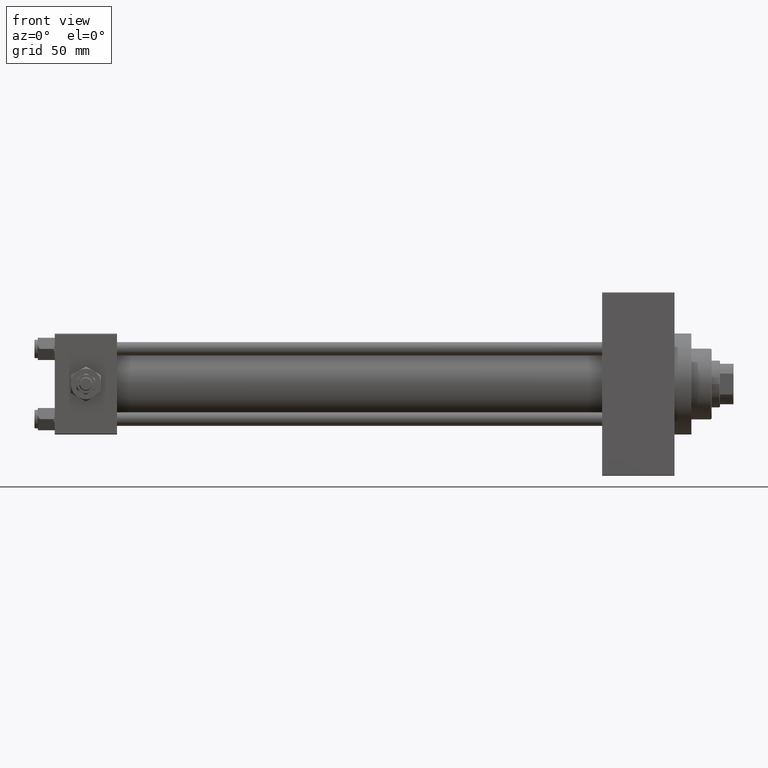
[diagram: clean part render]
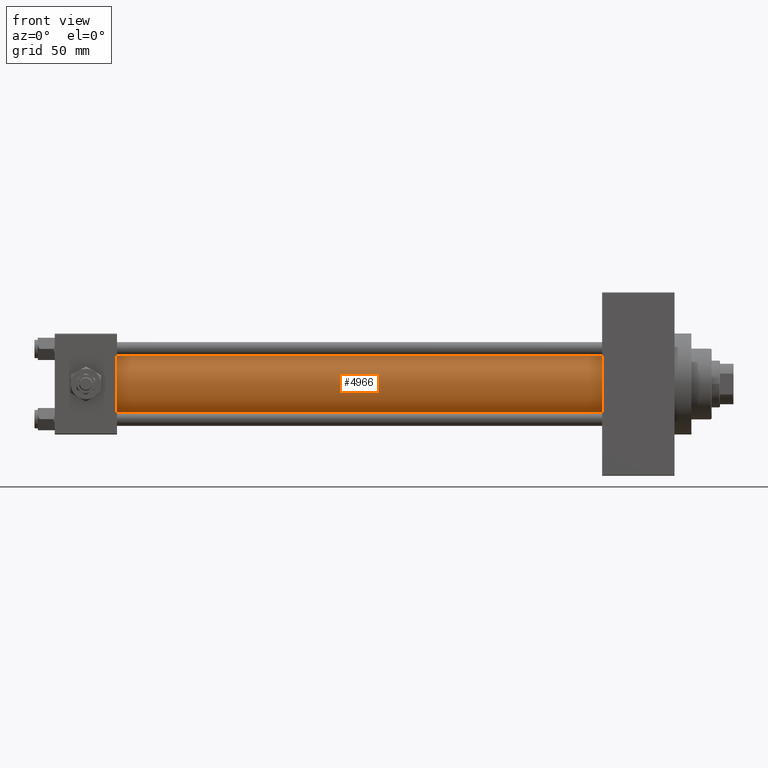
[diagram: same view with one face highlighted and labeled with its STEP entity id]
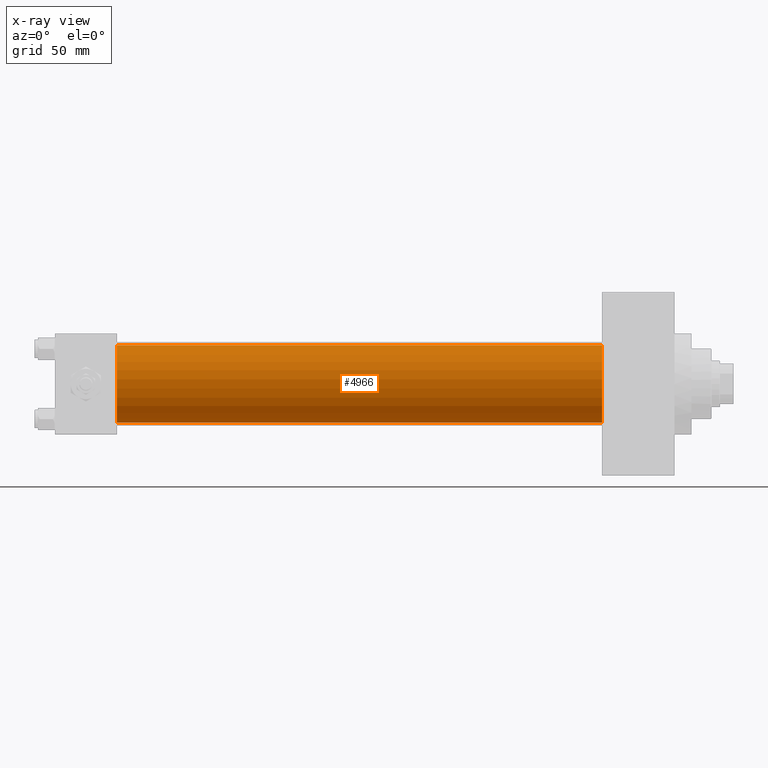
[diagram: x-ray of the same camera — body ghosted, the highlighted face saturated]
A machine part, front view. The second image highlights one B-rep face of the part: STEP entity #4966.
The next image is the same camera in x-ray: the body ghosted, the highlighted face saturated — about 0% of this face is hidden behind the body in this view.
In plain terms, the highlighted cylindrical surface (partial cylindrical patch) has radius 23 mm, axis along (-1, -0, -0).
Its self-contained STEP definition (entity closure, byte-faithful):
#1198 = CIRCLE ( 'NONE', #45702, 23.00000000000000000 ) ;
#4129 = CARTESIAN_POINT ( 'NONE',  ( 324.9999999999999432, -2.602085213965210642E-15, 23.00000000000000000 ) ) ;
#4747 = CYLINDRICAL_SURFACE ( 'NONE', #39401, 23.00000000000000000 ) ;
#4966 = ADVANCED_FACE ( 'NONE', ( #20426 ), #4747, .T. ) ;
#6013 = CARTESIAN_POINT ( 'NONE',  ( 36.99999999999997868, 2.146024240737016609E-16, -23.00000000000000000 ) ) ;
#10860 = DIRECTION ( 'NONE',  ( -1.000000000000000000, -0.000000000000000000, -0.000000000000000000 ) ) ;
#12324 = EDGE_LOOP ( 'NONE', ( #44010, #18074, #23326, #29106 ) ) ;
#14959 = LINE ( 'NONE', #25461, #36438 ) ;
#16311 = EDGE_CURVE ( 'NONE', #32013, #34917, #41490, .T. ) ;
#18074 = ORIENTED_EDGE ( 'NONE', *, *, #35279, .F. ) ;
#18196 = VECTOR ( 'NONE', #10860, 1000.000000000000000 ) ;
#19936 = CARTESIAN_POINT ( 'NONE',  ( 324.9999999999999432, -2.602085213965210642E-15, 0.000000000000000000 ) ) ;
#20426 = FACE_OUTER_BOUND ( 'NONE', #12324, .T. ) ;
#21130 = CARTESIAN_POINT ( 'NONE',  ( 36.99999999999997868, -2.602085213965210642E-15, 23.00000000000000000 ) ) ;
#21963 = DIRECTION ( 'NONE',  ( -1.000000000000000000, -0.000000000000000000, -0.000000000000000000 ) ) ;
#22113 = CARTESIAN_POINT ( 'NONE',  ( 36.99999999999997868, -2.602085213965210642E-15, 0.000000000000000000 ) ) ;
#22531 = VERTEX_POINT ( 'NONE', #6013 ) ;
#23326 = ORIENTED_EDGE ( 'NONE', *, *, #16311, .T. ) ;
#23902 = AXIS2_PLACEMENT_3D ( 'NONE', #31913, #46604, #27926 ) ;
#25461 = CARTESIAN_POINT ( 'NONE',  ( 324.9999999999999432, 2.146024240737016609E-16, -23.00000000000000000 ) ) ;
#27074 = EDGE_CURVE ( 'NONE', #49249, #22531, #14959, .T. ) ;
#27656 = DIRECTION ( 'NONE',  ( 0.000000000000000000, 0.000000000000000000, 1.000000000000000000 ) ) ;
#27926 = DIRECTION ( 'NONE',  ( 0.000000000000000000, 0.000000000000000000, -1.000000000000000000 ) ) ;
#28914 = CARTESIAN_POINT ( 'NONE',  ( 324.9999999999999432, 2.146024240737016609E-16, -23.00000000000000000 ) ) ;
#29106 = ORIENTED_EDGE ( 'NONE', *, *, #46724, .T. ) ;
#31913 = CARTESIAN_POINT ( 'NONE',  ( 324.9999999999999432, -2.602085213965210642E-15, 0.000000000000000000 ) ) ;
#32013 = VERTEX_POINT ( 'NONE', #45364 ) ;
#34917 = VERTEX_POINT ( 'NONE', #21130 ) ;
#35130 = DIRECTION ( 'NONE',  ( -1.000000000000000000, -0.000000000000000000, -0.000000000000000000 ) ) ;
#35279 = EDGE_CURVE ( 'NONE', #32013, #49249, #45338, .T. ) ;
#36438 = VECTOR ( 'NONE', #21963, 1000.000000000000000 ) ;
#37290 = DIRECTION ( 'NONE',  ( 1.000000000000000000, -0.000000000000000000, 0.000000000000000000 ) ) ;
#39401 = AXIS2_PLACEMENT_3D ( 'NONE', #19936, #35130, #27656 ) ;
#40541 = DIRECTION ( 'NONE',  ( 0.000000000000000000, 0.000000000000000000, 1.000000000000000000 ) ) ;
#41490 = LINE ( 'NONE', #4129, #18196 ) ;
#44010 = ORIENTED_EDGE ( 'NONE', *, *, #27074, .F. ) ;
#45338 = CIRCLE ( 'NONE', #23902, 23.00000000000000000 ) ;
#45364 = CARTESIAN_POINT ( 'NONE',  ( 324.9999999999999432, -2.602085213965210642E-15, 23.00000000000000000 ) ) ;
#45702 = AXIS2_PLACEMENT_3D ( 'NONE', #22113, #37290, #40541 ) ;
#46604 = DIRECTION ( 'NONE',  ( 1.000000000000000000, 0.000000000000000000, 0.000000000000000000 ) ) ;
#46724 = EDGE_CURVE ( 'NONE', #34917, #22531, #1198, .T. ) ;
#49249 = VERTEX_POINT ( 'NONE', #28914 ) ;